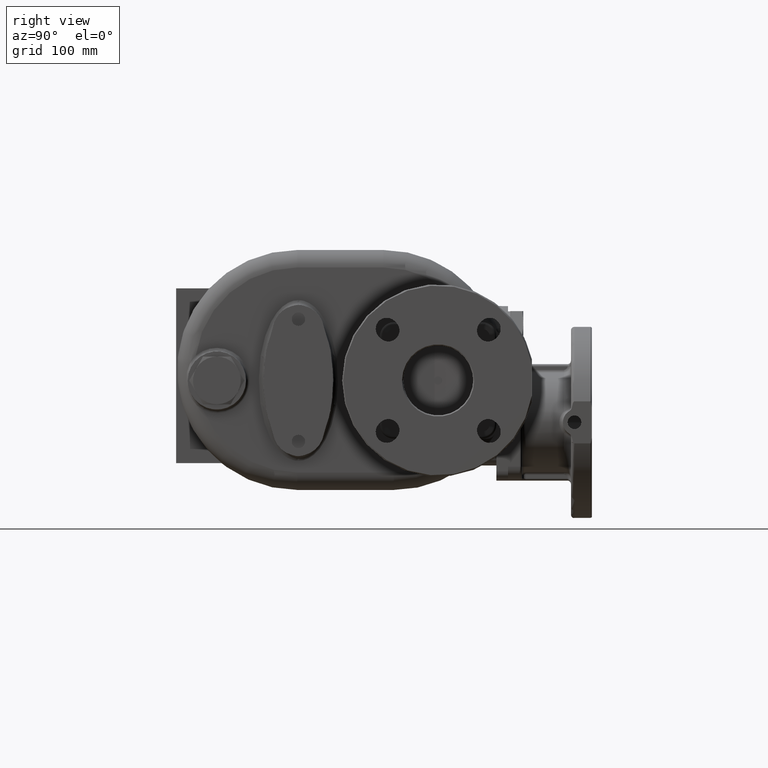
[diagram: clean part render]
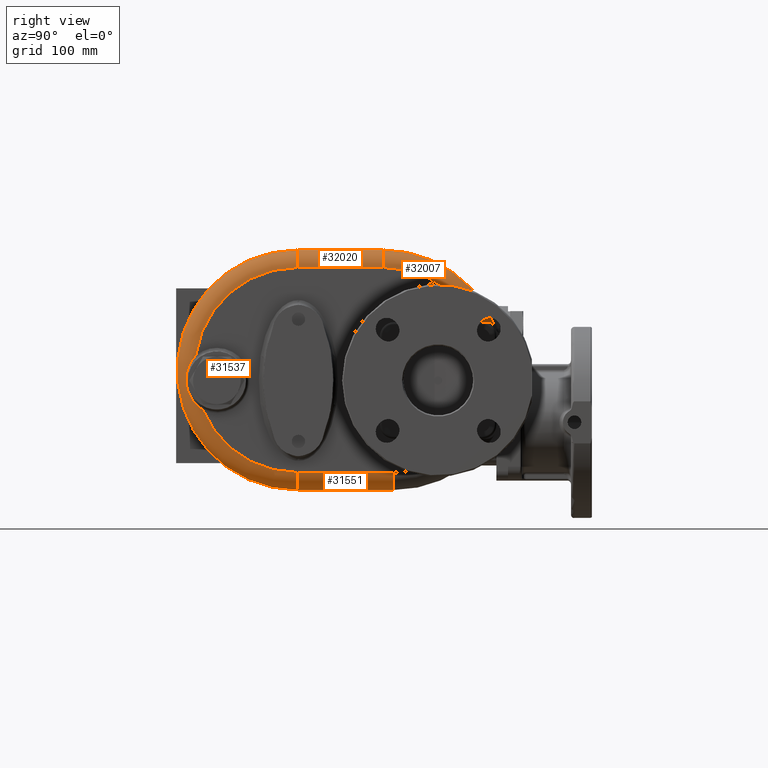
[diagram: same view with one multi-face feature highlighted, each face labeled with its STEP entity id]
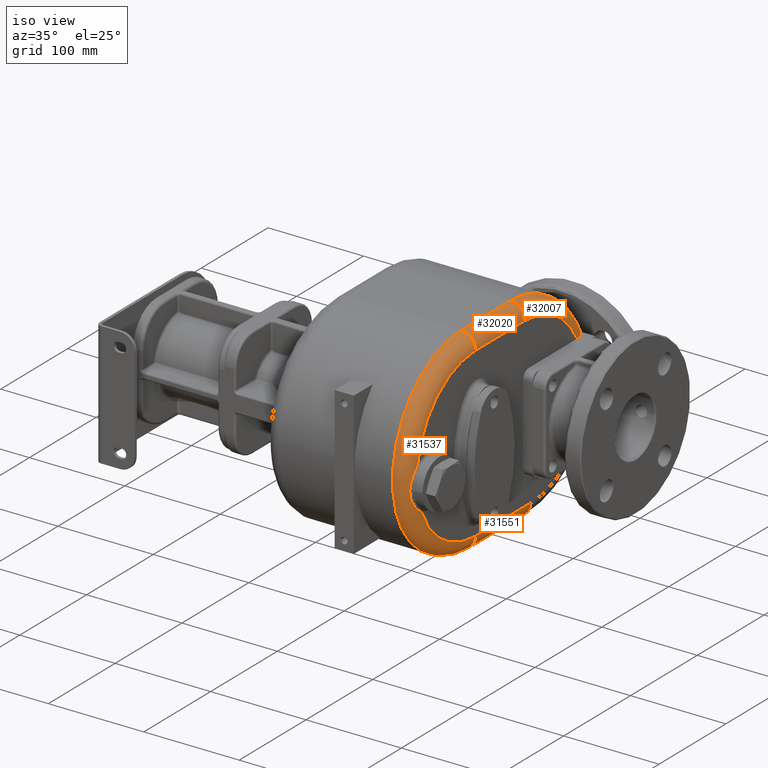
[diagram: same view with one multi-face feature highlighted, each face labeled with its STEP entity id]
A machine part, right view. The highlighted faces form ONE feature: a constant-radius fillet chain: 4 tangent blend faces with common blend radius 15 mm. The faces share edges in the B-rep.
A second angle (iso view) of the same feature is appended — it is thin or edge-on in the first view.
Their STEP definitions:
[1] entity #32007 (Torus):
#11022=CARTESIAN_POINT('',(6.5E1,1.779157701947E2,0.E0));
#11023=DIRECTION('',(1.E0,0.E0,0.E0));
#11024=DIRECTION('',(0.E0,8.848325937759E-1,4.659090909091E-1));
#11025=AXIS2_PLACEMENT_3D('',#11022,#11023,#11024);
#11922=CARTESIAN_POINT('',(5.E1,1.779157701947E2,0.E0));
#11923=DIRECTION('',(1.E0,0.E0,0.E0));
#11924=DIRECTION('',(0.E0,9.377287347924E-1,3.473684210526E-1));
#11925=AXIS2_PLACEMENT_3D('',#11922,#11923,#11924);
#12023=CARTESIAN_POINT('',(5.E1,2.745018298783E2,3.577894736842E1));
#12024=CARTESIAN_POINT('',(5.020101568759E1,2.744487320866E2,3.592228603159E1));
#12025=CARTESIAN_POINT('',(5.060249652659E1,2.743344736254E2,3.620553010682E1));
#12026=CARTESIAN_POINT('',(5.120334129808E1,2.741391444655E2,3.661971496347E1));
#12027=CARTESIAN_POINT('',(5.180035544472E1,2.739210585520E2,3.702098342893E1));
#12028=CARTESIAN_POINT('',(5.239261927575E1,2.736810473854E2,3.740822842585E1));
#12029=CARTESIAN_POINT('',(5.297770715870E1,2.734206845886E2,3.777943482370E1));
#12030=CARTESIAN_POINT('',(5.355460768159E1,2.731411313518E2,3.813360938305E1));
#12031=CARTESIAN_POINT('',(5.412144644352E1,2.728440693341E2,3.846930785738E1));
#12032=CARTESIAN_POINT('',(5.467693405492E1,2.725310662987E2,3.878556754388E1));
#12033=CARTESIAN_POINT('',(5.522001441876E1,2.722036469466E2,3.908164385540E1));
#12034=CARTESIAN_POINT('',(5.574922764545E1,2.718637083335E2,3.935668889727E1));
#12035=CARTESIAN_POINT('',(5.626410762916E1,2.715125990081E2,3.961046902161E1));
#12036=CARTESIAN_POINT('',(5.676313042400E1,2.711524708822E2,3.984232935963E1));
#12037=CARTESIAN_POINT('',(5.724623979118E1,2.707845164796E2,4.005241309078E1));
#12038=CARTESIAN_POINT('',(5.771233586124E1,2.704107439488E2,4.024047448791E1));
#12039=CARTESIAN_POINT('',(5.816149476330E1,2.700322936357E2,4.040684924267E1));
#12040=CARTESIAN_POINT('',(5.859304292659E1,2.696509300537E2,4.055164034883E1));
#12041=CARTESIAN_POINT('',(5.900692632686E1,2.692679379552E2,4.067526694222E1));
#12042=CARTESIAN_POINT('',(5.940318984220E1,2.688844839738E2,4.077820581610E1));
#12043=CARTESIAN_POINT('',(5.978159558659E1,2.685020303532E2,4.086093231822E1));
#12044=CARTESIAN_POINT('',(6.014277300916E1,2.681211401708E2,4.092413994413E1));
#12045=CARTESIAN_POINT('',(6.048643811599E1,2.677433062624E2,4.096837962110E1));
#12046=CARTESIAN_POINT('',(6.081337131469E1,2.673688521621E2,4.099438788250E1));
#12047=CARTESIAN_POINT('',(6.102008609275E1,2.671223352401E2,4.1E1));
#12048=CARTESIAN_POINT('',(6.112067991398E1,2.67E2,4.1E1));
#12050=CARTESIAN_POINT('',(6.112067991398E1,2.67E2,4.1E1));
#12051=CARTESIAN_POINT('',(6.124565001584E1,2.668480200152E2,4.1E1));
#12052=CARTESIAN_POINT('',(6.149078620999E1,2.665384004637E2,4.1E1));
#12053=CARTESIAN_POINT('',(6.184414580978E1,2.660564268643E2,4.1E1));
#12054=CARTESIAN_POINT('',(6.218207201909E1,2.655578763460E2,4.1E1));
#12055=CARTESIAN_POINT('',(6.250425511505E1,2.650426557518E2,4.1E1));
#12056=CARTESIAN_POINT('',(6.280966920086E1,2.645118260200E2,4.1E1));
#12057=CARTESIAN_POINT('',(6.309805032539E1,2.639652059889E2,4.1E1));
#12058=CARTESIAN_POINT('',(6.336835612465E1,2.634040835667E2,4.1E1));
#12059=CARTESIAN_POINT('',(6.362024812072E1,2.628284644681E2,4.1E1));
#12060=CARTESIAN_POINT('',(6.385292212239E1,2.622393509741E2,4.1E1));
#12061=CARTESIAN_POINT('',(6.406579616394E1,2.616374317181E2,4.1E1));
#12062=CARTESIAN_POINT('',(6.425838612283E1,2.610230802420E2,4.1E1));
#12063=CARTESIAN_POINT('',(6.442990867048E1,2.603978397649E2,4.1E1));
#12064=CARTESIAN_POINT('',(6.458006311532E1,2.597617005900E2,4.1E1));
#12065=CARTESIAN_POINT('',(6.470815493818E1,2.591162983433E2,4.1E1));
#12066=CARTESIAN_POINT('',(6.481381315798E1,2.584622349579E2,4.1E1));
#12067=CARTESIAN_POINT('',(6.489659738734E1,2.578004056922E2,4.1E1));
#12068=CARTESIAN_POINT('',(6.495606582080E1,2.571326389062E2,4.1E1));
#12069=CARTESIAN_POINT('',(6.499197908370E1,2.564589945034E2,4.1E1));
#12070=CARTESIAN_POINT('',(6.5E1,2.560075071648E2,4.1E1));
#12071=CARTESIAN_POINT('',(6.5E1,2.557810384470E2,4.1E1));
#12073=CARTESIAN_POINT('',(5.E1,1.779157701947E2,8.8E1));
#12074=DIRECTION('',(0.E0,-1.E0,0.E0));
#12075=DIRECTION('',(1.E0,0.E0,0.E0));
#12076=AXIS2_PLACEMENT_3D('',#12073,#12074,#12075);
#15835=CARTESIAN_POINT('',(6.5E1,1.779157701947E2,8.8E1));
#15837=VERTEX_POINT('',#15835);
#15839=CARTESIAN_POINT('',(5.E1,1.779157701947E2,1.03E2));
#15840=VERTEX_POINT('',#15839);
#15841=CARTESIAN_POINT('',(6.5E1,2.557810384470E2,4.1E1));
#15842=VERTEX_POINT('',#15841);
#15843=CARTESIAN_POINT('',(5.E1,2.745018298783E2,3.577894736842E1));
#15844=VERTEX_POINT('',#15843);
#15845=VERTEX_POINT('',#12048);
#31994=CARTESIAN_POINT('',(5.E1,1.779157701947E2,0.E0));
#31995=DIRECTION('',(-1.E0,0.E0,0.E0));
#31996=DIRECTION('',(0.E0,9.404855930077E-1,3.398335612399E-1));
#31997=AXIS2_PLACEMENT_3D('',#31994,#31995,#31996);
#31998=TOROIDAL_SURFACE('',#31997,8.8E1,1.5E1);
#31999=ORIENTED_EDGE('',*,*,#31361,.T.);
#32001=ORIENTED_EDGE('',*,*,#32000,.T.);
#32002=ORIENTED_EDGE('',*,*,#31983,.F.);
#32003=ORIENTED_EDGE('',*,*,#28382,.T.);
#32004=ORIENTED_EDGE('',*,*,#28615,.T.);
#32005=EDGE_LOOP('',(#31999,#32001,#32002,#32003,#32004));
#32006=FACE_OUTER_BOUND('',#32005,.F.);
#32007=ADVANCED_FACE('',(#32006),#31998,.T.);
#11026=CIRCLE('',#11025,8.8E1);
#11926=CIRCLE('',#11925,1.03E2);
#12049=B_SPLINE_CURVE_WITH_KNOTS('',3,(#12023,#12024,#12025,#12026,#12027,
#12028,#12029,#12030,#12031,#12032,#12033,#12034,#12035,#12036,#12037,#12038,
#12039,#12040,#12041,#12042,#12043,#12044,#12045,#12046,#12047,#12048),
.UNSPECIFIED.,.F.,.F.,(4,1,1,1,1,1,1,1,1,1,1,1,1,1,1,1,1,1,1,1,1,1,1,4),(0.E0,
4.347826086957E-2,8.695652173913E-2,1.304347826087E-1,1.739130434783E-1,
2.173913043478E-1,2.608695652174E-1,3.043478260870E-1,3.478260869565E-1,
3.913043478261E-1,4.347826086957E-1,4.782608695652E-1,5.217391304348E-1,
5.652173913043E-1,6.086956521739E-1,6.521739130435E-1,6.956521739130E-1,
7.391304347826E-1,7.826086956522E-1,8.260869565217E-1,8.695652173913E-1,
9.130434782609E-1,9.565217391304E-1,1.E0),.UNSPECIFIED.);
#12072=B_SPLINE_CURVE_WITH_KNOTS('',3,(#12050,#12051,#12052,#12053,#12054,
#12055,#12056,#12057,#12058,#12059,#12060,#12061,#12062,#12063,#12064,#12065,
#12066,#12067,#12068,#12069,#12070,#12071),.UNSPECIFIED.,.F.,.F.,(4,1,1,1,1,1,1,
1,1,1,1,1,1,1,1,1,1,1,1,4),(0.E0,5.263157894737E-2,1.052631578947E-1,
1.578947368421E-1,2.105263157895E-1,2.631578947368E-1,3.157894736842E-1,
3.684210526316E-1,4.210526315789E-1,4.736842105263E-1,5.263157894737E-1,
5.789473684211E-1,6.315789473684E-1,6.842105263158E-1,7.368421052632E-1,
7.894736842105E-1,8.421052631579E-1,8.947368421053E-1,9.473684210526E-1,1.E0),
.UNSPECIFIED.);
#12077=CIRCLE('',#12076,1.5E1);
#28382=EDGE_CURVE('',#15844,#15845,#12049,.T.);
#28615=EDGE_CURVE('',#15845,#15842,#12072,.T.);
#31361=EDGE_CURVE('',#15842,#15837,#11026,.T.);
#31983=EDGE_CURVE('',#15844,#15840,#11926,.T.);
#32000=EDGE_CURVE('',#15837,#15840,#12077,.T.);
[2] entity #32020 (Cylinder):
#11018=DIRECTION('',(0.E0,-1.E0,0.E0));
#11019=VECTOR('',#11018,7.391577019472E1);
#11020=CARTESIAN_POINT('',(6.5E1,1.779157701947E2,8.8E1));
#11021=LINE('',#11020,#11019);
#11408=CARTESIAN_POINT('',(5.E1,1.04E2,8.8E1));
#11409=DIRECTION('',(0.E0,-1.E0,0.E0));
#11410=DIRECTION('',(1.E0,0.E0,0.E0));
#11411=AXIS2_PLACEMENT_3D('',#11408,#11409,#11410);
#12073=CARTESIAN_POINT('',(5.E1,1.779157701947E2,8.8E1));
#12074=DIRECTION('',(0.E0,-1.E0,0.E0));
#12075=DIRECTION('',(1.E0,0.E0,0.E0));
#12076=AXIS2_PLACEMENT_3D('',#12073,#12074,#12075);
#12082=DIRECTION('',(0.E0,-1.E0,0.E0));
#12083=VECTOR('',#12082,7.391577019462E1);
#12084=CARTESIAN_POINT('',(5.E1,1.779157701947E2,1.03E2));
#12085=LINE('',#12084,#12083);
#15833=CARTESIAN_POINT('',(5.E1,1.04E2,1.03E2));
#15834=VERTEX_POINT('',#15833);
#15835=CARTESIAN_POINT('',(6.5E1,1.779157701947E2,8.8E1));
#15836=CARTESIAN_POINT('',(6.5E1,1.04E2,8.8E1));
#15837=VERTEX_POINT('',#15835);
#15838=VERTEX_POINT('',#15836);
#15839=CARTESIAN_POINT('',(5.E1,1.779157701947E2,1.03E2));
#15840=VERTEX_POINT('',#15839);
#32008=CARTESIAN_POINT('',(5.E1,1.787421789659E2,8.8E1));
#32009=DIRECTION('',(0.E0,-1.E0,0.E0));
#32010=DIRECTION('',(1.E0,0.E0,0.E0));
#32011=AXIS2_PLACEMENT_3D('',#32008,#32009,#32010);
#32012=CYLINDRICAL_SURFACE('',#32011,1.5E1);
#32013=ORIENTED_EDGE('',*,*,#31359,.T.);
#32014=ORIENTED_EDGE('',*,*,#31531,.T.);
#32016=ORIENTED_EDGE('',*,*,#32015,.F.);
#32017=ORIENTED_EDGE('',*,*,#32000,.F.);
#32018=EDGE_LOOP('',(#32013,#32014,#32016,#32017));
#32019=FACE_OUTER_BOUND('',#32018,.F.);
#32020=ADVANCED_FACE('',(#32019),#32012,.T.);
#11412=CIRCLE('',#11411,1.5E1);
#12077=CIRCLE('',#12076,1.5E1);
#31359=EDGE_CURVE('',#15837,#15838,#11021,.T.);
#31531=EDGE_CURVE('',#15838,#15834,#11412,.T.);
#32000=EDGE_CURVE('',#15837,#15840,#12077,.T.);
#32015=EDGE_CURVE('',#15840,#15834,#12085,.T.);
[3] entity #31537 (Torus):
#11013=CARTESIAN_POINT('',(6.5E1,1.04E2,0.E0));
#11014=DIRECTION('',(1.E0,0.E0,0.E0));
#11015=DIRECTION('',(0.E0,0.E0,1.E0));
#11016=AXIS2_PLACEMENT_3D('',#11013,#11014,#11015);
#11036=CARTESIAN_POINT('',(6.5E1,1.04E2,0.E0));
#11037=DIRECTION('',(1.E0,0.E0,0.E0));
#11038=DIRECTION('',(0.E0,-9.210367537029E-1,-3.894756710354E-1));
#11039=AXIS2_PLACEMENT_3D('',#11036,#11037,#11038);
#11371=CARTESIAN_POINT('',(6.499999922128E1,2.294876544944E1,
-3.427385476207E1));
#11372=CARTESIAN_POINT('',(6.500000070770E1,2.272236153855E1,
-3.413992664537E1));
#11373=CARTESIAN_POINT('',(6.499511372207E1,2.226826679203E1,
-3.386228544483E1));
#11374=CARTESIAN_POINT('',(6.497338544515E1,2.158346201643E1,
-3.341588774144E1));
#11375=CARTESIAN_POINT('',(6.493766855637E1,2.089763908820E1,
-3.293914950467E1));
#11376=CARTESIAN_POINT('',(6.488850972078E1,2.021274401890E1,
-3.243186677359E1));
#11377=CARTESIAN_POINT('',(6.482660447602E1,1.953100730141E1,
-3.189388601106E1));
#11378=CARTESIAN_POINT('',(6.475277540833E1,1.885449350835E1,
-3.132512720437E1));
#11379=CARTESIAN_POINT('',(6.466792999235E1,1.818510316962E1,
-3.072566175001E1));
#11380=CARTESIAN_POINT('',(6.457311211885E1,1.752494498620E1,
-3.009585809262E1));
#11381=CARTESIAN_POINT('',(6.446945122099E1,1.687597113901E1,
-2.943610846249E1));
#11382=CARTESIAN_POINT('',(6.435825707014E1,1.624058780246E1,
-2.874746228488E1));
#11383=CARTESIAN_POINT('',(6.424098844922E1,1.562132950559E1,
-2.803145118683E1));
#11384=CARTESIAN_POINT('',(6.411916745241E1,1.502047091479E1,
-2.728968586155E1));
#11385=CARTESIAN_POINT('',(6.399440591323E1,1.444025390221E1,
-2.652408360079E1));
#11386=CARTESIAN_POINT('',(6.386835264573E1,1.388274690855E1,
-2.573679634191E1));
#11387=CARTESIAN_POINT('',(6.374264345940E1,1.334974074106E1,
-2.493007006070E1));
#11388=CARTESIAN_POINT('',(6.361877749758E1,1.284238468870E1,
-2.410559777595E1));
#11389=CARTESIAN_POINT('',(6.349820732396E1,1.236169019453E1,
-2.326511529270E1));
#11390=CARTESIAN_POINT('',(6.338234158784E1,1.190866151970E1,
-2.241078941939E1));
#11391=CARTESIAN_POINT('',(6.327256283489E1,1.148437777522E1,
-2.154537918038E1));
#11392=CARTESIAN_POINT('',(6.317016212597E1,1.108979229662E1,
-2.067199166201E1));
#11393=CARTESIAN_POINT('',(6.307607448357E1,1.072480403269E1,
-1.979182812546E1));
#11394=CARTESIAN_POINT('',(6.299102704255E1,1.038885702009E1,
-1.890480053588E1));
#11395=CARTESIAN_POINT('',(6.291574722147E1,1.008163633302E1,
-1.801083179074E1));
#11396=CARTESIAN_POINT('',(6.285082637925E1,9.803084331513E0,
-1.711137232627E1));
#11397=CARTESIAN_POINT('',(6.279674912535E1,9.553178981917E0,
-1.620822757329E1));
#11398=CARTESIAN_POINT('',(6.275388783341E1,9.331791830110E0,
-1.530284986412E1));
#11399=CARTESIAN_POINT('',(6.272247393974E1,9.138425045E0,-1.439473548811E1));
#11400=CARTESIAN_POINT('',(6.270276035452E1,8.972862712890E0,
-1.348346412486E1));
#11401=CARTESIAN_POINT('',(6.269501116072E1,8.835087679762E0,
-1.256837527718E1));
#11402=CARTESIAN_POINT('',(6.269910011123E1,8.724697025679E0,
-1.164880209929E1));
#11403=CARTESIAN_POINT('',(6.271494090848E1,8.641537391448E0,
-1.072402644825E1));
#11404=CARTESIAN_POINT('',(6.274249036526E1,8.585908031533E0,
-9.793474468310E0));
#11405=CARTESIAN_POINT('',(6.276866318850E1,8.567178128751E0,
-9.168466309815E0));
#11406=CARTESIAN_POINT('',(6.278367518543E1,8.562707650356E0,
-8.855006509120E0));
#11408=CARTESIAN_POINT('',(5.E1,1.04E2,8.8E1));
#11409=DIRECTION('',(0.E0,-1.E0,0.E0));
#11410=DIRECTION('',(1.E0,0.E0,0.E0));
#11411=AXIS2_PLACEMENT_3D('',#11408,#11409,#11410);
#11413=CARTESIAN_POINT('',(6.278367518543E1,8.562707650356E0,
-8.855006509120E0));
#11414=CARTESIAN_POINT('',(6.279830556522E1,8.558466658314E0,
-8.551709612410E0));
#11415=CARTESIAN_POINT('',(6.283113875412E1,8.559090509869E0,
-7.943656105551E0));
#11416=CARTESIAN_POINT('',(6.289089050867E1,8.586903488566E0,
-7.027571000156E0));
#11417=CARTESIAN_POINT('',(6.296060864859E1,8.642203021581E0,
-6.108774770174E0));
#11418=CARTESIAN_POINT('',(6.303975405040E1,8.725238355090E0,
-5.188358250117E0));
#11419=CARTESIAN_POINT('',(6.312770977529E1,8.836403839456E0,
-4.267534102759E0));
#11420=CARTESIAN_POINT('',(6.322377916787E1,8.976060866672E0,
-3.347496120426E0));
#11421=CARTESIAN_POINT('',(6.332710252809E1,9.144406661228E0,
-2.428871006205E0));
#11422=CARTESIAN_POINT('',(6.343678521295E1,9.341722978511E0,
-1.512187363818E0));
#11423=CARTESIAN_POINT('',(6.355180432790E1,9.568216150394E0,
-5.984954641245E-1));
#11424=CARTESIAN_POINT('',(6.367081526864E1,9.823517795225E0,
3.092877412653E-1));
#11425=CARTESIAN_POINT('',(6.379240663919E1,1.010704679573E1,1.208476310890E0));
#11426=CARTESIAN_POINT('',(6.391514271072E1,1.041808306421E1,2.096656979256E0));
#11427=CARTESIAN_POINT('',(6.403757385614E1,1.075576574312E1,2.971678828413E0));
#11428=CARTESIAN_POINT('',(6.415822993440E1,1.111903479763E1,3.831416487090E0));
#11429=CARTESIAN_POINT('',(6.427561863251E1,1.150654436281E1,4.673622988674E0));
#11430=CARTESIAN_POINT('',(6.438827752382E1,1.191672971700E1,5.496146075037E0));
#11431=CARTESIAN_POINT('',(6.449481608021E1,1.234788355660E1,6.297045666420E0));
#11432=CARTESIAN_POINT('',(6.459393460784E1,1.279819353991E1,7.074610665607E0));
#11433=CARTESIAN_POINT('',(6.468441532643E1,1.326562287515E1,7.827167704131E0));
#11434=CARTESIAN_POINT('',(6.476522528056E1,1.374841763429E1,8.553823528112E0));
#11435=CARTESIAN_POINT('',(6.483543862982E1,1.424484684701E1,9.253907086615E0));
#11436=CARTESIAN_POINT('',(6.489423412394E1,1.475318190690E1,9.926885864335E0));
#11437=CARTESIAN_POINT('',(6.494088664457E1,1.527168492997E1,1.057244283218E1));
#11438=CARTESIAN_POINT('',(6.497476321714E1,1.579834374542E1,1.119024029106E1));
#11439=CARTESIAN_POINT('',(6.499536647001E1,1.633139772858E1,1.178005807319E1));
#11440=CARTESIAN_POINT('',(6.500000015300E1,1.668944947799E1,1.215446594458E1));
#11441=CARTESIAN_POINT('',(6.499999906107E1,1.686908178673E1,1.233705214877E1));
#11443=CARTESIAN_POINT('',(5.E1,1.04E2,-8.8E1));
#11444=DIRECTION('',(0.E0,1.E0,0.E0));
#11445=DIRECTION('',(1.E0,0.E0,0.E0));
#11446=AXIS2_PLACEMENT_3D('',#11443,#11444,#11445);
#12095=CARTESIAN_POINT('',(5.E1,1.04E2,0.E0));
#12096=DIRECTION('',(1.E0,0.E0,0.E0));
#12097=DIRECTION('',(0.E0,0.E0,1.E0));
#12098=AXIS2_PLACEMENT_3D('',#12095,#12096,#12097);
#15829=CARTESIAN_POINT('',(6.5E1,1.04E2,-8.8E1));
#15830=VERTEX_POINT('',#15829);
#15831=CARTESIAN_POINT('',(5.E1,1.04E2,-1.03E2));
#15832=VERTEX_POINT('',#15831);
#15833=CARTESIAN_POINT('',(5.E1,1.04E2,1.03E2));
#15834=VERTEX_POINT('',#15833);
#15836=CARTESIAN_POINT('',(6.5E1,1.04E2,8.8E1));
#15838=VERTEX_POINT('',#15836);
#15898=VERTEX_POINT('',#11371);
#15899=VERTEX_POINT('',#11406);
#15901=VERTEX_POINT('',#11441);
#31520=CARTESIAN_POINT('',(5.E1,1.04E2,0.E0));
#31521=DIRECTION('',(-1.E0,0.E0,0.E0));
#31522=DIRECTION('',(0.E0,8.023300044310E-3,9.999678128102E-1));
#31523=AXIS2_PLACEMENT_3D('',#31520,#31521,#31522);
#31524=TOROIDAL_SURFACE('',#31523,8.8E1,1.5E1);
#31525=ORIENTED_EDGE('',*,*,#31441,.F.);
#31526=ORIENTED_EDGE('',*,*,#31373,.T.);
#31528=ORIENTED_EDGE('',*,*,#31527,.T.);
#31530=ORIENTED_EDGE('',*,*,#31529,.F.);
#31532=ORIENTED_EDGE('',*,*,#31531,.F.);
#31533=ORIENTED_EDGE('',*,*,#31357,.T.);
#31534=ORIENTED_EDGE('',*,*,#31514,.F.);
#31535=EDGE_LOOP('',(#31525,#31526,#31528,#31530,#31532,#31533,#31534));
#31536=FACE_OUTER_BOUND('',#31535,.F.);
#31537=ADVANCED_FACE('',(#31536),#31524,.T.);
#11017=CIRCLE('',#11016,8.8E1);
#11040=CIRCLE('',#11039,8.8E1);
#11407=B_SPLINE_CURVE_WITH_KNOTS('',3,(#11371,#11372,#11373,#11374,#11375,
#11376,#11377,#11378,#11379,#11380,#11381,#11382,#11383,#11384,#11385,#11386,
#11387,#11388,#11389,#11390,#11391,#11392,#11393,#11394,#11395,#11396,#11397,
#11398,#11399,#11400,#11401,#11402,#11403,#11404,#11405,#11406),.UNSPECIFIED.,
.F.,.F.,(4,1,1,1,1,1,1,1,1,1,1,1,1,1,1,1,1,1,1,1,1,1,1,1,1,1,1,1,1,1,1,1,1,4),(
0.E0,3.030303030303E-2,6.060606060606E-2,9.090909090909E-2,1.212121212121E-1,
1.515151515152E-1,1.818181818182E-1,2.121212121212E-1,2.424242424242E-1,
2.727272727273E-1,3.030303030303E-1,3.333333333333E-1,3.636363636364E-1,
3.939393939394E-1,4.242424242424E-1,4.545454545455E-1,4.848484848485E-1,
5.151515151515E-1,5.454545454545E-1,5.757575757576E-1,6.060606060606E-1,
6.363636363636E-1,6.666666666667E-1,6.969696969697E-1,7.272727272727E-1,
7.575757575758E-1,7.878787878788E-1,8.181818181818E-1,8.484848484848E-1,
8.787878787879E-1,9.090909090909E-1,9.393939393939E-1,9.696969696970E-1,1.E0),
.UNSPECIFIED.);
#11412=CIRCLE('',#11411,1.5E1);
#11442=B_SPLINE_CURVE_WITH_KNOTS('',3,(#11413,#11414,#11415,#11416,#11417,
#11418,#11419,#11420,#11421,#11422,#11423,#11424,#11425,#11426,#11427,#11428,
#11429,#11430,#11431,#11432,#11433,#11434,#11435,#11436,#11437,#11438,#11439,
#11440,#11441),.UNSPECIFIED.,.F.,.F.,(4,1,1,1,1,1,1,1,1,1,1,1,1,1,1,1,1,1,1,1,1,
1,1,1,1,1,4),(0.E0,3.846153846154E-2,7.692307692308E-2,1.153846153846E-1,
1.538461538462E-1,1.923076923077E-1,2.307692307692E-1,2.692307692308E-1,
3.076923076923E-1,3.461538461538E-1,3.846153846154E-1,4.230769230769E-1,
4.615384615385E-1,5.E-1,5.384615384615E-1,5.769230769231E-1,6.153846153846E-1,
6.538461538462E-1,6.923076923077E-1,7.307692307692E-1,7.692307692308E-1,
8.076923076923E-1,8.461538461538E-1,8.846153846154E-1,9.230769230769E-1,
9.615384615385E-1,1.E0),.UNSPECIFIED.);
#11447=CIRCLE('',#11446,1.5E1);
#12099=CIRCLE('',#12098,1.03E2);
#31357=EDGE_CURVE('',#15838,#15901,#11017,.T.);
#31373=EDGE_CURVE('',#15898,#15830,#11040,.T.);
#31441=EDGE_CURVE('',#15898,#15899,#11407,.T.);
#31514=EDGE_CURVE('',#15899,#15901,#11442,.T.);
#31527=EDGE_CURVE('',#15830,#15832,#11447,.T.);
#31529=EDGE_CURVE('',#15834,#15832,#12099,.T.);
#31531=EDGE_CURVE('',#15838,#15834,#11412,.T.);
[4] entity #31551 (Cylinder):
#11032=DIRECTION('',(0.E0,1.E0,0.E0));
#11033=VECTOR('',#11032,8.285014036194E1);
#11034=CARTESIAN_POINT('',(6.5E1,1.04E2,-8.8E1));
#11035=LINE('',#11034,#11033);
#11443=CARTESIAN_POINT('',(5.E1,1.04E2,-8.8E1));
#11444=DIRECTION('',(0.E0,1.E0,0.E0));
#11445=DIRECTION('',(1.E0,0.E0,0.E0));
#11446=AXIS2_PLACEMENT_3D('',#11443,#11444,#11445);
#11448=CARTESIAN_POINT('',(5.E1,1.868501403619E2,-8.8E1));
#11449=DIRECTION('',(0.E0,1.E0,0.E0));
#11450=DIRECTION('',(1.E0,0.E0,0.E0));
#11451=AXIS2_PLACEMENT_3D('',#11448,#11449,#11450);
#12126=DIRECTION('',(0.E0,1.E0,0.E0));
#12127=VECTOR('',#12126,8.285014036159E1);
#12128=CARTESIAN_POINT('',(5.E1,1.04E2,-1.03E2));
#12129=LINE('',#12128,#12127);
#15821=CARTESIAN_POINT('',(5.E1,1.868501403619E2,-1.03E2));
#15823=VERTEX_POINT('',#15821);
#15825=CARTESIAN_POINT('',(6.5E1,1.868501403619E2,-8.8E1));
#15827=VERTEX_POINT('',#15825);
#15829=CARTESIAN_POINT('',(6.5E1,1.04E2,-8.8E1));
#15830=VERTEX_POINT('',#15829);
#15831=CARTESIAN_POINT('',(5.E1,1.04E2,-1.03E2));
#15832=VERTEX_POINT('',#15831);
#31538=CARTESIAN_POINT('',(5.E1,1.031735912288E2,-8.8E1));
#31539=DIRECTION('',(0.E0,1.E0,0.E0));
#31540=DIRECTION('',(1.E0,0.E0,0.E0));
#31541=AXIS2_PLACEMENT_3D('',#31538,#31539,#31540);
#31542=CYLINDRICAL_SURFACE('',#31541,1.5E1);
#31543=ORIENTED_EDGE('',*,*,#31371,.T.);
#31545=ORIENTED_EDGE('',*,*,#31544,.T.);
#31547=ORIENTED_EDGE('',*,*,#31546,.F.);
#31548=ORIENTED_EDGE('',*,*,#31527,.F.);
#31549=EDGE_LOOP('',(#31543,#31545,#31547,#31548));
#31550=FACE_OUTER_BOUND('',#31549,.F.);
#31551=ADVANCED_FACE('',(#31550),#31542,.T.);
#11447=CIRCLE('',#11446,1.5E1);
#11452=CIRCLE('',#11451,1.5E1);
#31371=EDGE_CURVE('',#15830,#15827,#11035,.T.);
#31527=EDGE_CURVE('',#15830,#15832,#11447,.T.);
#31544=EDGE_CURVE('',#15827,#15823,#11452,.T.);
#31546=EDGE_CURVE('',#15832,#15823,#12129,.T.);